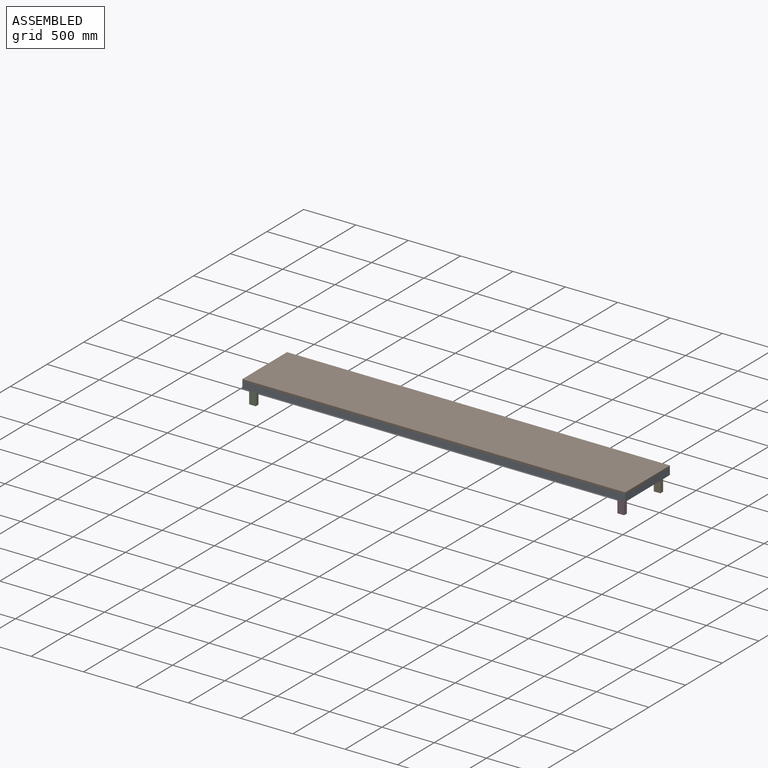
[diagram: assembled view]
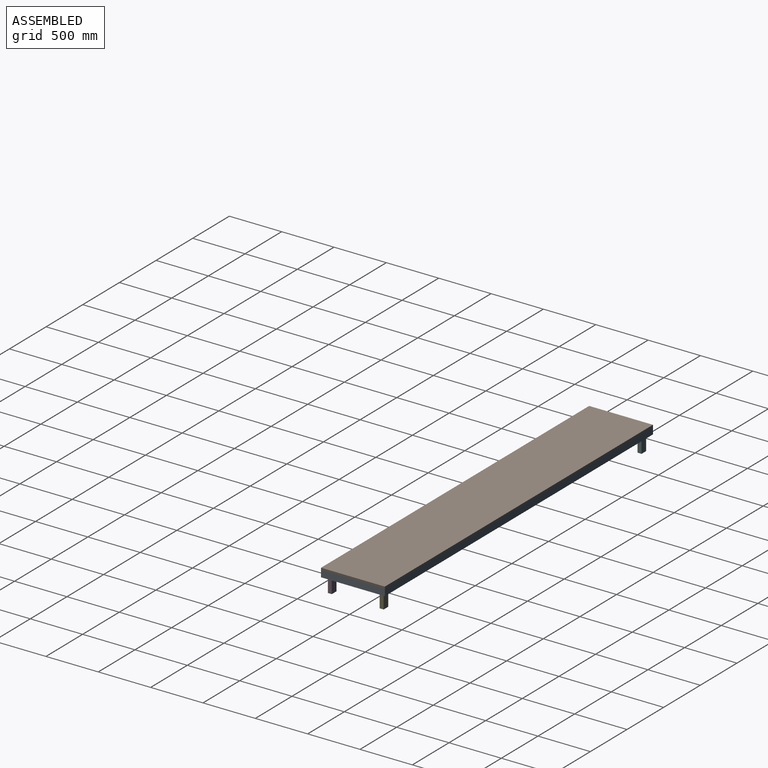
[diagram: assembled view, second angle]
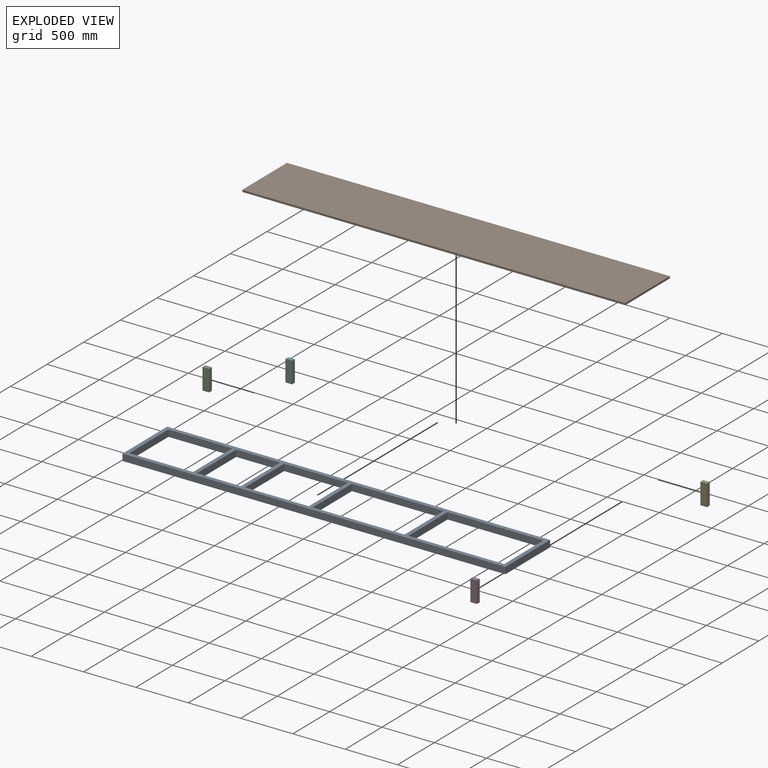
[diagram: exploded view]
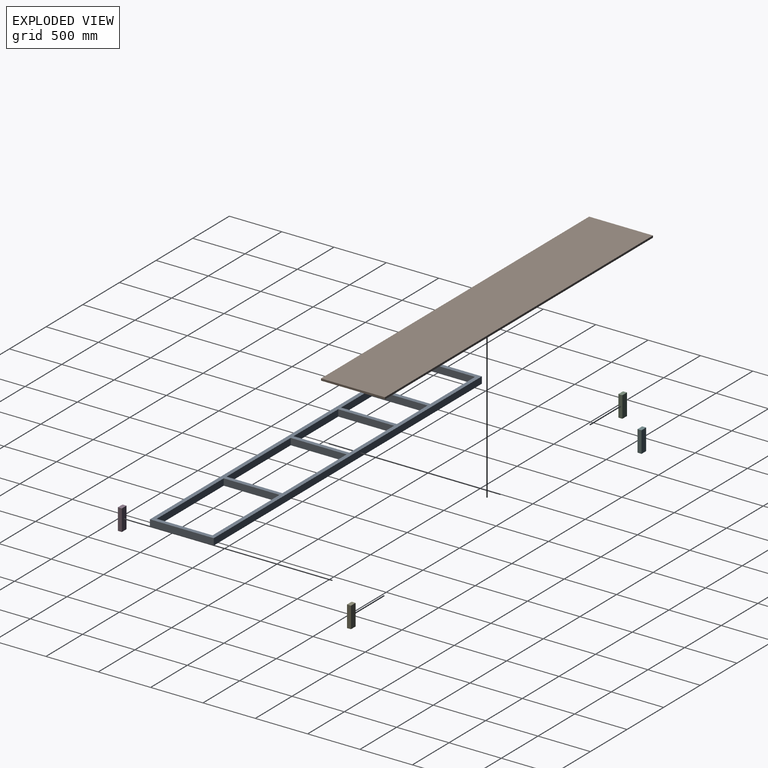
[diagram: exploded view, second angle]
ASSEMBLY  parts=6 mates=6
PART A: 26 faces, bbox 3657.6x609.6x63.5 mm
  f0: plane 533.4x63.5mm, normal (-1,0,0), area 33870.9mm2, adj f1,f23,f24,f25
  f1: plane 609.6x63.5mm, normal (0,1,0), area 38709.6mm2, adj f0,f2,f24,f25
  f2: plane 533.4x63.5mm, normal (1,0,0), area 33870.9mm2, adj f1,f23,f24,f25
  f3: plane 609.6x63.5mm, normal (-1,0,0), area 38709.6mm2, adj f4,f18,f24,f25
  f4: plane 3657.6x63.5mm, normal (0,-1,0), area 232257.6mm2, adj f3,f5,f24,f25
  f5: plane 609.6x63.5mm, normal (1,0,0), area 38709.6mm2, adj f4,f18,f24,f25
  f6: plane 419.1x63.5mm, normal (0,1,0), area 26612.9mm2, adj f7,f19,f24,f25
  f7: plane 533.4x63.5mm, normal (1,0,0), area 33870.9mm2, adj f6,f8,f24,f25
  f8: plane 419.1x63.5mm, normal (0,-1,0), area 26612.9mm2, adj f7,f19,f24,f25
  f9: plane 609.6x63.5mm, normal (0,1,0), area 38709.6mm2, adj f10,f20,f24,f25
  f10: plane 533.4x63.5mm, normal (1,0,0), area 33870.9mm2, adj f9,f11,f24,f25
  f11: plane 609.6x63.5mm, normal (0,-1,0), area 38709.6mm2, adj f10,f20,f24,f25
  f12: plane 876.3x63.5mm, normal (0,1,0), area 55645mm2, adj f13,f21,f24,f25
  f13: plane 533.4x63.5mm, normal (1,0,0), area 33870.9mm2, adj f12,f14,f24,f25
  f14: plane 876.3x63.5mm, normal (0,-1,0), area 55645mm2, adj f13,f21,f24,f25
  f15: plane 533.4x63.5mm, normal (1,0,0), area 33870.9mm2, adj f16,f22,f24,f25
  f16: plane 914.4x63.5mm, normal (0,-1,0), area 58064.4mm2, adj f15,f17,f24,f25
  f17: plane 533.4x63.5mm, normal (-1,0,0), area 33870.9mm2, adj f16,f22,f24,f25
  f18: plane 3657.6x63.5mm, normal (0,1,0), area 232257.6mm2, adj f3,f5,f24,f25
  f19: plane 533.4x63.5mm, normal (-1,0,0), area 33870.9mm2, adj f6,f8,f24,f25
  f20: plane 533.4x63.5mm, normal (-1,0,0), area 33870.9mm2, adj f9,f11,f24,f25
  f21: plane 533.4x63.5mm, normal (-1,0,0), area 33870.9mm2, adj f12,f14,f24,f25
  f22: plane 914.4x63.5mm, normal (0,1,0), area 58064.4mm2, adj f15,f17,f24,f25
  f23: plane 609.6x63.5mm, normal (0,-1,0), area 38709.6mm2, adj f0,f2,f24,f25
  f24: plane 3657.6x609.6mm, normal (0,0,1), area 400644.4mm2, adj f0,f1,f2,f3,f4,f5,f6,f7
  f25: plane 3657.6x609.6mm, normal (0,0,-1), area 400644.4mm2, adj f0,f1,f2,f3,f4,f5,f6,f7
PART B: 6 faces, bbox 3657.6x609.6x19.1 mm
  f0: plane 609.6x19.05mm, normal (-1,0,0), area 11612.9mm2, adj f1,f3,f4,f5
  f1: plane 3657.6x19.05mm, normal (0,-1,0), area 69677.3mm2, adj f0,f2,f4,f5
  f2: plane 609.6x19.05mm, normal (1,0,0), area 11612.9mm2, adj f1,f3,f4,f5
  f3: plane 3657.6x19.05mm, normal (0,1,0), area 69677.3mm2, adj f0,f2,f4,f5
  f4: plane 3657.6x609.6mm, normal (0,0,1), area 2229673mm2, adj f0,f1,f2,f3
  f5: plane 3657.6x609.6mm, normal (0,0,-1), area 2229673mm2, adj f0,f1,f2,f3
PART C: 6 faces, bbox 63.5x38.1x203.2 mm
  f0: plane 203.2x38.1mm, normal (-1,0,0), area 7741.9mm2, adj f1,f3,f4,f5
  f1: plane 63.5x38.1mm, normal (0,0,-1), area 2419.3mm2, adj f0,f2,f4,f5
  f2: plane 203.2x38.1mm, normal (1,0,0), area 7741.9mm2, adj f1,f3,f4,f5
  f3: plane 63.5x38.1mm, normal (0,0,1), area 2419.3mm2, adj f0,f2,f4,f5
  f4: plane 203.2x63.5mm, normal (0,-1,0), area 12903.2mm2, adj f0,f1,f2,f3
  f5: plane 203.2x63.5mm, normal (0,1,0), area 12903.2mm2, adj f0,f1,f2,f3
PART D: same geometry as C
PART E: same geometry as C
PART F: same geometry as C
PLACE A t=(-248.62,163.93,-300.08)mm
PLACE B t=(-248.62,163.93,-236.58)mm
PLACE C t=(-210.52,240.13,-439.78)mm
PLACE D t=(3307.38,240.13,-439.78)mm
PLACE E t=(3307.38,735.43,-439.78)mm
PLACE F t=(-210.52,735.43,-439.78)mm
MATE planar D.f4 <-> A.f12  axis (0,-1,0) through (3339.13,202.03,-338.18)mm
MATE planar D.f2 <-> A.f17  axis (1,0,0) through (3370.88,221.08,-338.18)mm
MATE planar B.f5 <-> A.f24  axis (0,0,-1) through (1580.18,468.73,-236.58)mm
MATE planar D.f3 <-> B.f5  axis (0,0,1) through (3339.13,221.08,-236.58)mm
MATE planar B.f1 <-> A.f4  axis (0,-1,0) through (1580.18,163.93,-227.06)mm
MATE planar B.f2 <-> A.f5  axis (1,0,0) through (3408.98,468.73,-227.06)mm
